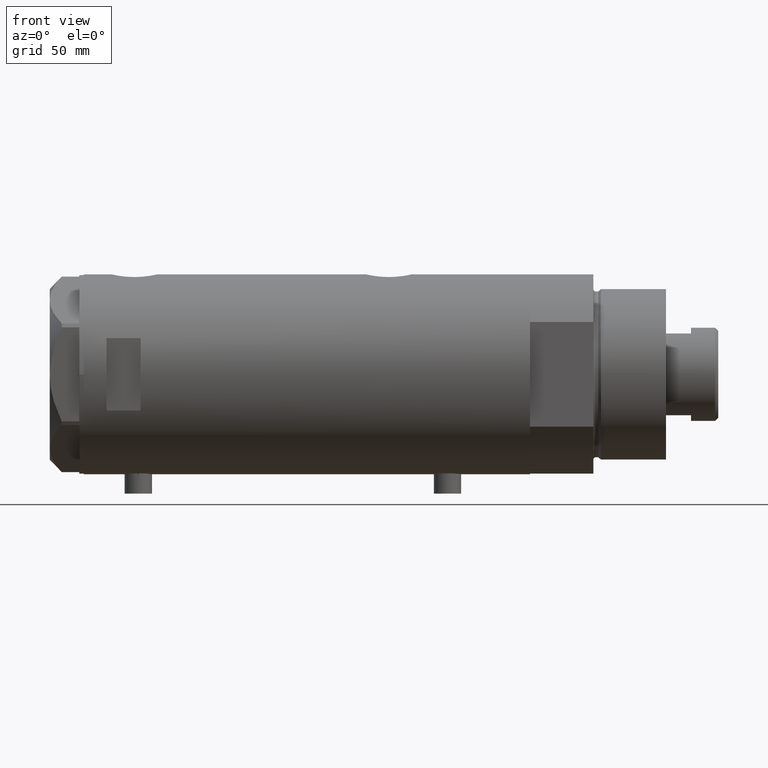
[diagram: clean part render]
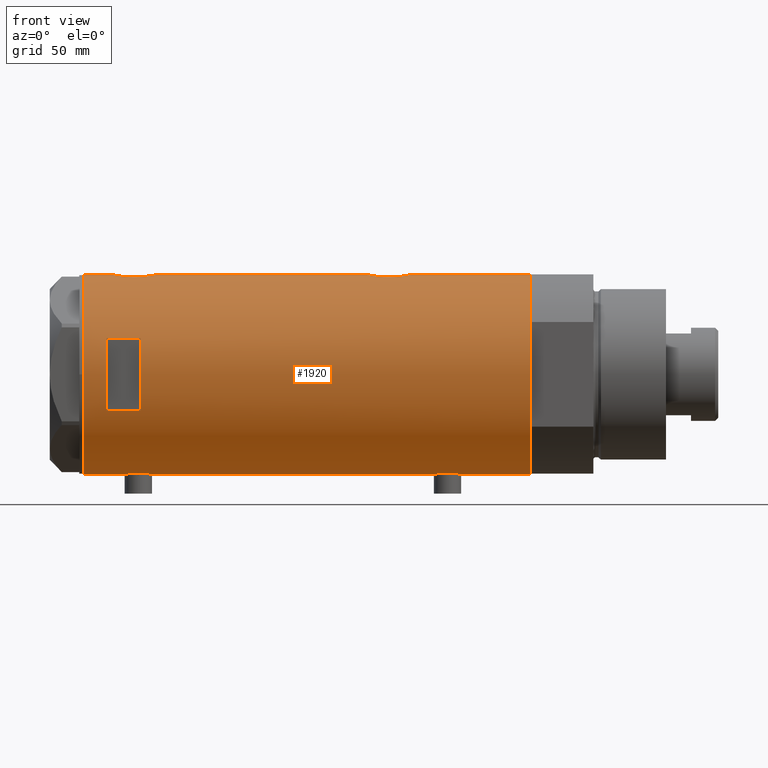
[diagram: same view with one face highlighted and labeled with its STEP entity id]
A machine part, front view. The second image highlights one B-rep face of the part: STEP entity #1920.
In plain terms, the highlighted cylindrical surface (partial cylindrical patch) has radius 44 mm, axis along (-1, -0, 0).
Its self-contained STEP definition (entity closure, byte-faithful):
#26 = CARTESIAN_POINT ( 'NONE',  ( -43.66469451360047316, -5.426465874727620431, -58.77225408135789309 ) ) ;
#27 = CARTESIAN_POINT ( 'NONE',  ( 43.85817087158035577, -3.542878095418167117, -45.45703661115526018 ) ) ;
#54 = CARTESIAN_POINT ( 'NONE',  ( -43.74813644611201369, -4.709999724143506761, -57.77155956056775210 ) ) ;
#56 = CARTESIAN_POINT ( 'NONE',  ( 43.39114022679083860, -7.298186114522533963, -29.25582720507938816 ) ) ;
#59 = DIRECTION ( 'NONE',  ( 0.000000000000000000, 0.000000000000000000, 1.000000000000000000 ) ) ;
#82 = DIRECTION ( 'NONE',  ( 1.000000000000000000, 0.000000000000000000, 0.000000000000000000 ) ) ;
#84 = CARTESIAN_POINT ( 'NONE',  ( -15.96871942267132027, -40.99999999999999289, -98.20000000000000284 ) ) ;
#85 = CARTESIAN_POINT ( 'NONE',  ( -44.00000000000000000, 5.388445916248353619E-15, -98.20000000000000284 ) ) ;
#98 = CARTESIAN_POINT ( 'NONE',  ( -43.59959777593761032, -5.922725608094079774, -59.89350688782584342 ) ) ;
#148 = CARTESIAN_POINT ( 'NONE',  ( 43.98543813568861793, -1.304985013906736713, 85.83653066273880938 ) ) ;
#150 = FACE_OUTER_BOUND ( 'NONE', #3249, .T. ) ;
#152 = VERTEX_POINT ( 'NONE', #530 ) ;
#171 = CARTESIAN_POINT ( 'NONE',  ( -43.55380622335315621, -6.250277076879243943, 74.60889833390194781 ) ) ;
#191 = CARTESIAN_POINT ( 'NONE',  ( -43.64013512596971367, -5.618144550806293047, 76.96884254373171075 ) ) ;
#217 = CARTESIAN_POINT ( 'NONE',  ( -43.74870614644074607, -4.704745394280565485, 70.06553512659976946 ) ) ;
#224 = CARTESIAN_POINT ( 'NONE',  ( -43.74870614644073896, -4.704745394280569037, -66.03446487340026749 ) ) ;
#238 = CARTESIAN_POINT ( 'NONE',  ( 43.46477581456304051, -6.845969322274853219, 68.60355539876688624 ) ) ;
#257 = CARTESIAN_POINT ( 'NONE',  ( 42.99316244204496940, -9.359736474891654723, 79.43603020032176687 ) ) ;
#259 = B_SPLINE_CURVE_WITH_KNOTS ( 'NONE', 3,
 ( #3297, #1853, #148, #1204, #4045, #2607, #1922, #1573, #1228, #2633, #891, #2285, #1984, #623, #4436, #3057, #1959, #257, #1664, #2351, #1338, #3076, #2053, #1703, #4477, #3756, #3696, #4098, #3719, #909, #3377, #2028, #286, #2698, #238, #1643, #4459, #3096, #4494, #1686, #3423, #2759, #2739, #1360, #4137, #649, #993 ),
 .UNSPECIFIED., .F., .F.,
 ( 4, 2, 2, 2, 2, 2, 2, 2, 2, 2, 1, 2, 2, 2, 2, 2, 2, 2, 2, 2, 2, 2, 2, 4 ),
 ( 0.03136730421198213881, 0.03332724096696806915, 0.03528717772195399949, 0.03626714609944696466, 0.03724711447693992289, 0.03920705123192585323, 0.04018701960941880452, 0.04116698798691175581, 0.04312692474189768616, 0.04410689311939065826, 0.04508686149688362343, 0.04606682987437659554, 0.04704679825186956071, 0.04900673500685545636, 0.05096667176184135201, 0.05292660851682724765, 0.05390657689432017119, 0.05488654527181310167, 0.05586651364930603214, 0.05684648202679896262, 0.05880641878178481663, 0.05978638715927775404, 0.06076635553677069146, 0.06272629229175656629 ),
 .UNSPECIFIED. ) ;
#261 = CARTESIAN_POINT ( 'NONE',  ( -43.59994860325051036, -5.920144153815573240, 72.18593642430241175 ) ) ;
#268 = VERTEX_POINT ( 'NONE', #2063 ) ;
#286 = CARTESIAN_POINT ( 'NONE',  ( 43.35257225115238100, -7.523216248090028202, 69.30394696407655886 ) ) ;
#326 = CARTESIAN_POINT ( 'NONE',  ( 42.92195198079053853, -9.681069926205545073, -38.68932500906514349 ) ) ;
#341 = DIRECTION ( 'NONE',  ( -0.000000000000000000, -4.625929269271481378E-15, 1.000000000000000000 ) ) ;
#377 = CARTESIAN_POINT ( 'NONE',  ( 43.61181667275832297, -5.838254419127783201, -44.22544109417496117 ) ) ;
#398 = CARTESIAN_POINT ( 'NONE',  ( -43.55388615229803406, -6.249720082677246324, -62.31732514111985211 ) ) ;
#400 = CARTESIAN_POINT ( 'NONE',  ( 43.80655905412561424, -4.132395729537631901, -26.98794673806236943 ) ) ;
#426 = CARTESIAN_POINT ( 'NONE',  ( -43.94477385411918391, -2.211843467998025226, -56.05092770077139619 ) ) ;
#432 = DIRECTION ( 'NONE',  ( 0.000000000000000000, 0.000000000000000000, 1.000000000000000000 ) ) ;
#453 = DIRECTION ( 'NONE',  ( 1.000000000000000000, 0.000000000000000000, 0.000000000000000000 ) ) ;
#474 = LINE ( 'NONE', #2938, #995 ) ;
#493 = ORIENTED_EDGE ( 'NONE', *, *, #2225, .F. ) ;
#497 = LINE ( 'NONE', #3979, #3282 ) ;
#498 = VECTOR ( 'NONE', #1064, 1000.000000000000000 ) ;
#530 = CARTESIAN_POINT ( 'NONE',  ( 44.00000000000000000, 2.836945177865671897E-15, -46.10000000000000853 ) ) ;
#562 = CARTESIAN_POINT ( 'NONE',  ( -43.83572624786197025, -3.813948911733268776, 69.23163569779342197 ) ) ;
#563 = CARTESIAN_POINT ( 'NONE',  ( -15.96871942267132027, -40.99999999999999289, 88.20000000000000284 ) ) ;
#578 = CARTESIAN_POINT ( 'NONE',  ( 44.00000000000000000, 2.836945177865671897E-15, -46.10000000000000853 ) ) ;
#594 = B_SPLINE_CURVE_WITH_KNOTS ( 'NONE', 3,
 ( #3660, #4267, #2915, #2939, #1188, #3982, #1121, #3915, #1576, #4397, #562, #1252, #217, #4101, #4439, #958, #1272, #261, #1667, #3338, #2355, #2702, #171, #4379, #3738, #2656, #1231, #2637, #191, #894, #911, #2307, #3701, #1623, #1918, #2536, #4305, #4328, #1162, #3692, #2653, #4432, #973 ),
 .UNSPECIFIED., .F., .F.,
 ( 4, 2, 2, 1, 2, 2, 2, 2, 2, 2, 2, 2, 2, 2, 2, 2, 2, 2, 2, 2, 2, 4 ),
 ( 0.01956509074799517994, 0.02078761141254040559, 0.02139887174481301668, 0.02201013207708563124, 0.02262139240935824580, 0.02323265274163085689, 0.02445517340617610336, 0.02567769407072134982, 0.02690021473526659629, 0.02751147506753922126, 0.02812273539981184622, 0.02934525606435713085, 0.03056777672890241548, 0.03117903706117506127, 0.03179029739344770011, 0.03301281805799302638, 0.03423533872253835264, 0.03545785938708367196, 0.03668038005162899129, 0.03729164038390166136, 0.03790290071617432449, 0.03912542138071965075 ),
 .UNSPECIFIED. ) ;
#598 = CARTESIAN_POINT ( 'NONE',  ( 44.00000000000000000, 0.000000000000000000, -98.20000000000000284 ) ) ;
#623 = CARTESIAN_POINT ( 'NONE',  ( 43.27890888111421930, -7.936045294464972422, 81.99318436657195264 ) ) ;
#625 = CIRCLE ( 'NONE', #4000, 44.00000000000000000 ) ;
#649 = CARTESIAN_POINT ( 'NONE',  ( 43.99999999999998579, -0.6628808997490068800, 65.89999999999999147 ) ) ;
#652 = CARTESIAN_POINT ( 'NONE',  ( -43.97059312650997498, -1.620278982928825551, -67.93978691385872537 ) ) ;
#690 = B_SPLINE_CURVE_WITH_KNOTS ( 'NONE', 3,
 ( #2154, #4240, #2130, #3628, #3538, #400, #1784, #4530, #3809, #3170, #2076, #56, #1889, #3858, #1387, #1365, #1408, #3294, #1062, #2439, #1091, #2423, #724, #4260, #2765, #3516, #326, #2794, #1809, #3465, #3124, #3195, #2843, #3831, #2815, #701, #2464, #377, #1470, #2871, #27, #1437, #1289, #4431, #3030, #2283, #578 ),
 .UNSPECIFIED., .F., .F.,
 ( 4, 2, 2, 2, 2, 2, 2, 2, 2, 2, 1, 2, 2, 2, 2, 2, 2, 2, 2, 2, 2, 2, 2, 4 ),
 ( 0.03136730421198216656, 0.03332724096696806915, 0.03528717772195397173, 0.03626714609944691609, 0.03724711447693986738, 0.03920705123192576302, 0.04018701960941871432, 0.04116698798691166561, 0.04312692474189756126, 0.04410689311939051255, 0.04508686149688346384, 0.04606682987437641513, 0.04704679825186936643, 0.04900673500685526207, 0.05096667176184117160, 0.05292660851682706724, 0.05390657689432003241, 0.05488654527181299758, 0.05586651364930595581, 0.05684648202679891404, 0.05880641878178481663, 0.05978638715927777486, 0.06076635553677073309, 0.06272629229175663568 ),
 .UNSPECIFIED. ) ;
#701 = CARTESIAN_POINT ( 'NONE',  ( 43.50208939911752992, -6.605519787823889821, -43.61487246254434069 ) ) ;
#724 = CARTESIAN_POINT ( 'NONE',  ( 42.85249883256044257, -9.983208936152879076, -35.43427783458178482 ) ) ;
#748 = CARTESIAN_POINT ( 'NONE',  ( -43.60904414879379232, -5.852991024272610865, -59.69843683347092878 ) ) ;
#806 = CARTESIAN_POINT ( 'NONE',  ( 0.000000000000000000, 0.000000000000000000, 98.20000000000000284 ) ) ;
#811 = VERTEX_POINT ( 'NONE', #3636 ) ;
#828 = DIRECTION ( 'NONE',  ( 0.000000000000000000, 0.000000000000000000, 1.000000000000000000 ) ) ;
#862 = VECTOR ( 'NONE', #4335, 1000.000000000000000 ) ;
#891 = CARTESIAN_POINT ( 'NONE',  ( 43.50370990764397305, -6.606474645717129945, 83.43520935284888651 ) ) ;
#894 = CARTESIAN_POINT ( 'NONE',  ( -43.66469451360045895, -5.426465874727613325, 77.32774591864212255 ) ) ;
#898 = CARTESIAN_POINT ( 'NONE',  ( 44.00000000000000000, 0.000000000000000000, -98.20000000000000284 ) ) ;
#909 = CARTESIAN_POINT ( 'NONE',  ( 43.13689707656755701, -8.680169016269172033, 70.89163097888800280 ) ) ;
#911 = CARTESIAN_POINT ( 'NONE',  ( -43.71863308610073773, -4.973248429199020215, 78.00737790121172566 ) ) ;
#913 = ORIENTED_EDGE ( 'NONE', *, *, #1742, .F. ) ;
#917 = CARTESIAN_POINT ( 'NONE',  ( -43.99999999999999289, -0.4080709675389172508, -68.15000000000001990 ) ) ;
#921 = VECTOR ( 'NONE', #4052, 1000.000000000000000 ) ;
#925 = AXIS2_PLACEMENT_3D ( 'NONE', #2958, #1140, #82 ) ;
#958 = CARTESIAN_POINT ( 'NONE',  ( -43.64064219598290606, -5.614224114468902904, 71.42314510380529669 ) ) ;
#972 = CARTESIAN_POINT ( 'NONE',  ( 0.000000000000000000, 0.000000000000000000, 73.20000000000018758 ) ) ;
#973 = CARTESIAN_POINT ( 'NONE',  ( -44.00000000000000000, 4.742435893011557518E-16, 80.45000000000001705 ) ) ;
#993 = CARTESIAN_POINT ( 'NONE',  ( 44.00000000000000000, -2.552687571866728611E-15, 65.90000000000001990 ) ) ;
#995 = VECTOR ( 'NONE', #4334, 1000.000000000000000 ) ;
#1018 = CARTESIAN_POINT ( 'NONE',  ( -43.55964145621771877, -6.209995197331135586, -61.08476386616428755 ) ) ;
#1019 = CARTESIAN_POINT ( 'NONE',  ( -43.66524845950888789, -5.422010366683141847, -65.03538043352979514 ) ) ;
#1060 = ORIENTED_EDGE ( 'NONE', *, *, #2173, .F. ) ;
#1062 = CARTESIAN_POINT ( 'NONE',  ( 42.96858625215908489, -9.471543237354845601, -32.87555220689220903 ) ) ;
#1064 = DIRECTION ( 'NONE',  ( 0.000000000000000000, 0.000000000000000000, 1.000000000000000000 ) ) ;
#1091 = CARTESIAN_POINT ( 'NONE',  ( 42.89002978762405149, -9.821289861518543773, -34.13508362278915342 ) ) ;
#1102 = EDGE_CURVE ( 'NONE', #2727, #1407, #2421, .T. ) ;
#1121 = CARTESIAN_POINT ( 'NONE',  ( -43.93596008603760339, -2.395372424984027582, 68.41650819469388978 ) ) ;
#1129 = VERTEX_POINT ( 'NONE', #898 ) ;
#1133 = EDGE_CURVE ( 'NONE', #3314, #3415, #2416, .T. ) ;
#1137 = CARTESIAN_POINT ( 'NONE',  ( -43.64013512596970656, -5.618144550806301041, -59.13115745626835462 ) ) ;
#1140 = DIRECTION ( 'NONE',  ( 0.000000000000000000, 0.000000000000000000, 1.000000000000000000 ) ) ;
#1162 = CARTESIAN_POINT ( 'NONE',  ( -43.97029046111977379, -1.628482392291957126, 80.23758619792059221 ) ) ;
#1188 = CARTESIAN_POINT ( 'NONE',  ( -43.97059312650996787, -1.620278982928820888, 68.16021308614129737 ) ) ;
#1204 = CARTESIAN_POINT ( 'NONE',  ( 43.92776409818818451, -2.602555515054472135, 85.57803349287081573 ) ) ;
#1228 = CARTESIAN_POINT ( 'NONE',  ( 43.68175117880464597, -5.289576318274436417, 84.39277543291558459 ) ) ;
#1231 = CARTESIAN_POINT ( 'NONE',  ( -43.59959777593760322, -5.922725608094071781, 76.20649311217414379 ) ) ;
#1244 = EDGE_CURVE ( 'NONE', #1704, #268, #3627, .T. ) ;
#1252 = CARTESIAN_POINT ( 'NONE',  ( -43.80686114384900520, -4.128296917151112133, 69.48984144871690205 ) ) ;
#1255 = CARTESIAN_POINT ( 'NONE',  ( -43.87623998657198143, -3.302247739865023846, -67.21034343519744425 ) ) ;
#1272 = CARTESIAN_POINT ( 'NONE',  ( -43.60943079847655213, -5.850114217193378430, 71.99078124073398044 ) ) ;
#1274 = LINE ( 'NONE', #4142, #2403 ) ;
#1289 = CARTESIAN_POINT ( 'NONE',  ( 43.92391465552167773, -2.605621203777293893, -45.76018015101779923 ) ) ;
#1338 = CARTESIAN_POINT ( 'NONE',  ( 42.89003040145177437, -9.821289533110931558, 77.86491628329994796 ) ) ;
#1344 = CARTESIAN_POINT ( 'NONE',  ( -44.00000000000000000, 5.388445781992449847E-15, -68.15000000000001990 ) ) ;
#1360 = CARTESIAN_POINT ( 'NONE',  ( 43.94187300917955241, -2.283844398366610129, 66.15873953182952505 ) ) ;
#1364 = CARTESIAN_POINT ( 'NONE',  ( -43.58358352828438598, -6.039443007521659190, -63.52163098385739204 ) ) ;
#1365 = CARTESIAN_POINT ( 'NONE',  ( 43.13833976206234411, -8.672905216733560962, -31.07967078979186937 ) ) ;
#1387 = CARTESIAN_POINT ( 'NONE',  ( 43.24269204559828239, -8.130405600641552155, -30.26885497193005392 ) ) ;
#1407 = VERTEX_POINT ( 'NONE', #4321 ) ;
#1408 = CARTESIAN_POINT ( 'NONE',  ( 43.07447880731469780, -8.980869115410040848, -31.65290029795897553 ) ) ;
#1437 = CARTESIAN_POINT ( 'NONE',  ( 43.88203303552249679, -3.235230624304758162, -45.56792613063984732 ) ) ;
#1465 = CARTESIAN_POINT ( 'NONE',  ( -43.95404166778756405, -2.020054257598463021, -55.98191054514349929 ) ) ;
#1470 = CARTESIAN_POINT ( 'NONE',  ( 43.71626298452613923, -5.019105827807318398, -44.77413437979601696 ) ) ;
#1471 = LINE ( 'NONE', #2873, #498 ) ;
#1515 = VECTOR ( 'NONE', #3754, 1000.000000000000000 ) ;
#1544 = CARTESIAN_POINT ( 'NONE',  ( 44.00000000000000000, -2.552687571866728611E-15, 65.90000000000001990 ) ) ;
#1573 = CARTESIAN_POINT ( 'NONE',  ( 43.71528002050701645, -5.005885132985640418, 84.56306306714488130 ) ) ;
#1576 = CARTESIAN_POINT ( 'NONE',  ( -43.88927795770375440, -3.124736516396337649, 68.78332595076192035 ) ) ;
#1609 = CARTESIAN_POINT ( 'NONE',  ( -43.88927795770375440, -3.124736516396334096, -67.31667404923810238 ) ) ;
#1623 = CARTESIAN_POINT ( 'NONE',  ( -43.83513771791772484, -3.820747781112549202, 79.16321018296372358 ) ) ;
#1643 = CARTESIAN_POINT ( 'NONE',  ( 43.50208939911752992, -6.605519787823896927, 68.38512753745570194 ) ) ;
#1664 = CARTESIAN_POINT ( 'NONE',  ( 42.96858625215907779, -9.471543237354833167, 79.12444779310783360 ) ) ;
#1667 = CARTESIAN_POINT ( 'NONE',  ( -43.58358352828439308, -6.039443007521657414, 72.57836901614263070 ) ) ;
#1686 = CARTESIAN_POINT ( 'NONE',  ( 43.77905627191560001, -4.445085099228551329, 66.91859165683969479 ) ) ;
#1703 = CARTESIAN_POINT ( 'NONE',  ( 42.84860178791322483, -9.999866241079296003, 76.23396382694163265 ) ) ;
#1704 = VERTEX_POINT ( 'NONE', #2336 ) ;
#1705 = CARTESIAN_POINT ( 'NONE',  ( -43.99432382855034973, -0.8140126287075748479, -68.11042166816913834 ) ) ;
#1742 = EDGE_CURVE ( 'NONE', #2856, #1407, #2832, .T. ) ;
#1747 = ORIENTED_EDGE ( 'NONE', *, *, #1133, .F. ) ;
#1784 = CARTESIAN_POINT ( 'NONE',  ( 43.77763691689010983, -4.427538730370036646, -27.12757287791930239 ) ) ;
#1787 = CARTESIAN_POINT ( 'NONE',  ( -44.00000000000000000, 6.472851849715296073E-16, -55.65000000000000568 ) ) ;
#1809 = CARTESIAN_POINT ( 'NONE',  ( 43.07321175413309788, -8.986876637256999700, -40.53428201988752733 ) ) ;
#1815 = ORIENTED_EDGE ( 'NONE', *, *, #3442, .F. ) ;
#1853 = CARTESIAN_POINT ( 'NONE',  ( 44.00000000000000000, -0.6537011444665535853, 85.90000000000001990 ) ) ;
#1856 = CYLINDRICAL_SURFACE ( 'NONE', #2981, 44.00000000000000000 ) ;
#1889 = CARTESIAN_POINT ( 'NONE',  ( 43.35323102813807594, -7.519449998269473134, -29.49957710715733583 ) ) ;
#1914 = EDGE_CURVE ( 'NONE', #4006, #1129, #3185, .T. ) ;
#1918 = CARTESIAN_POINT ( 'NONE',  ( -43.88932649443422918, -3.137583818903199262, 79.62099038059545819 ) ) ;
#1920 = ADVANCED_FACE ( 'NONE', ( #150, #2157 ), #1856, .T. ) ;
#1922 = CARTESIAN_POINT ( 'NONE',  ( 43.77763691689010273, -4.427538730370040199, 84.87242712208069406 ) ) ;
#1945 = CARTESIAN_POINT ( 'NONE',  ( -43.95442538259509746, -2.011679190499027658, -67.82093546509783266 ) ) ;
#1959 = CARTESIAN_POINT ( 'NONE',  ( 43.07447880731470491, -8.980869115410039072, 80.34709970204103513 ) ) ;
#1984 = CARTESIAN_POINT ( 'NONE',  ( 43.35323102813806173, -7.519449998269472246, 82.50042289284266417 ) ) ;
#1989 = EDGE_CURVE ( 'NONE', #3797, #2856, #474, .T. ) ;
#2028 = CARTESIAN_POINT ( 'NONE',  ( 43.27861175590267351, -7.937636171351968528, 69.80897132009005190 ) ) ;
#2053 = CARTESIAN_POINT ( 'NONE',  ( 42.85249883256044967, -9.983208936152871971, 76.56572216541823650 ) ) ;
#2057 = CARTESIAN_POINT ( 'NONE',  ( -43.59994860325051036, -5.920144153815575017, -63.91406357569761099 ) ) ;
#2063 = CARTESIAN_POINT ( 'NONE',  ( 15.96871942267132027, -40.99999999999999289, 73.19999999999998863 ) ) ;
#2073 = ORIENTED_EDGE ( 'NONE', *, *, #3556, .F. ) ;
#2075 = CARTESIAN_POINT ( 'NONE',  ( -43.57664920749032689, -6.089110472216507475, -63.32363086869416691 ) ) ;
#2076 = CARTESIAN_POINT ( 'NONE',  ( 43.50370990764397305, -6.606474645717125505, -28.56479064715112415 ) ) ;
#2130 = CARTESIAN_POINT ( 'NONE',  ( 43.98543813568862504, -1.304985013906736047, -26.16346933726120128 ) ) ;
#2153 = CARTESIAN_POINT ( 'NONE',  ( -44.00000000000000000, 6.472851849715296073E-16, -55.65000000000000568 ) ) ;
#2154 = CARTESIAN_POINT ( 'NONE',  ( 44.00000000000000000, -3.917142467416489149E-21, -26.10000000000000497 ) ) ;
#2157 = FACE_BOUND ( 'NONE', #2734, .T. ) ;
#2173 = EDGE_CURVE ( 'NONE', #4232, #1704, #3227, .T. ) ;
#2203 = EDGE_CURVE ( 'NONE', #3224, #4232, #625, .T. ) ;
#2205 = CARTESIAN_POINT ( 'NONE',  ( -43.97729452866929023, -1.427712738744857601, -55.81177092556577435 ) ) ;
#2225 = EDGE_CURVE ( 'NONE', #3231, #3797, #594, .T. ) ;
#2240 = AXIS2_PLACEMENT_3D ( 'NONE', #972, #341, #4274 ) ;
#2258 = EDGE_CURVE ( 'NONE', #1129, #152, #3420, .T. ) ;
#2283 = CARTESIAN_POINT ( 'NONE',  ( 44.00000000000000000, -0.6628808997490056587, -46.10000000000000853 ) ) ;
#2285 = CARTESIAN_POINT ( 'NONE',  ( 43.39114022679083860, -7.298186114522533074, 82.74417279492062960 ) ) ;
#2292 = CARTESIAN_POINT ( 'NONE',  ( -44.00000000000000000, 5.388445781992449847E-15, -68.15000000000001990 ) ) ;
#2293 = ORIENTED_EDGE ( 'NONE', *, *, #4378, .F. ) ;
#2307 = CARTESIAN_POINT ( 'NONE',  ( -43.74813644611199948, -4.709999724143497879, 78.32844043943227064 ) ) ;
#2336 = CARTESIAN_POINT ( 'NONE',  ( -15.96871942267132027, -40.99999999999999289, 73.19999999999998863 ) ) ;
#2351 = CARTESIAN_POINT ( 'NONE',  ( 42.92612181419236350, -9.662173761604313071, 78.49799789609716072 ) ) ;
#2355 = CARTESIAN_POINT ( 'NONE',  ( -43.55981666146650610, -6.208773019004409477, 73.37562000806383367 ) ) ;
#2396 = CARTESIAN_POINT ( 'NONE',  ( -43.60943079847653792, -5.850114217193380206, -64.10921875926608493 ) ) ;
#2403 = VECTOR ( 'NONE', #2679, 1000.000000000000000 ) ;
#2416 = B_SPLINE_CURVE_WITH_KNOTS ( 'NONE', 3,
 ( #2292, #917, #1705, #3683, #652, #1945, #3344, #2763, #1609, #1255, #3706, #3367, #224, #3462, #1019, #4077, #2396, #2057, #1364, #2075, #3566, #398, #2489, #1018, #2512, #3194, #98, #748, #1137, #26, #2813, #54, #3884, #3536, #3221, #2539, #426, #1465, #2870, #2205, #3242, #2460, #2153 ),
 .UNSPECIFIED., .F., .F.,
 ( 4, 2, 2, 1, 2, 2, 2, 2, 2, 2, 2, 2, 2, 2, 2, 2, 2, 2, 2, 2, 2, 4 ),
 ( 0.01956509074799518341, 0.02078761141254042641, 0.02139887174481304791, 0.02201013207708566941, 0.02262139240935828743, 0.02323265274163090893, 0.02445517340617617622, 0.02567769407072143656, 0.02690021473526670037, 0.02751147506753932881, 0.02812273539981196072, 0.02934525606435726269, 0.03056777672890254385, 0.03117903706117519658, 0.03179029739344783889, 0.03301281805799314434, 0.03423533872253844978, 0.03545785938708374829, 0.03668038005162904680, 0.03729164038390170299, 0.03790290071617435919, 0.03912542138071965769 ),
 .UNSPECIFIED. ) ;
#2421 = LINE ( 'NONE', #3018, #921 ) ;
#2423 = CARTESIAN_POINT ( 'NONE',  ( 42.86761451923558042, -9.918101748202664325, -34.78132476450376487 ) ) ;
#2439 = CARTESIAN_POINT ( 'NONE',  ( 42.92612181419236350, -9.662173761604314848, -33.50200210390286770 ) ) ;
#2447 = ORIENTED_EDGE ( 'NONE', *, *, #1244, .F. ) ;
#2460 = CARTESIAN_POINT ( 'NONE',  ( -44.00000000000000000, -0.4134142287044832997, -55.65000000000000568 ) ) ;
#2464 = CARTESIAN_POINT ( 'NONE',  ( 43.57553740812845433, -6.102230194686617537, -44.02899655988669281 ) ) ;
#2477 = CARTESIAN_POINT ( 'NONE',  ( -44.00000000000000000, 4.742435893011557518E-16, 80.45000000000001705 ) ) ;
#2489 = CARTESIAN_POINT ( 'NONE',  ( -43.55380622335316332, -6.250277076879251936, -61.49110166609812467 ) ) ;
#2512 = CARTESIAN_POINT ( 'NONE',  ( -43.57636709704395628, -6.091127289750679630, -60.48500674339015148 ) ) ;
#2515 = DIRECTION ( 'NONE',  ( 0.000000000000000000, 0.000000000000000000, 1.000000000000000000 ) ) ;
#2536 = CARTESIAN_POINT ( 'NONE',  ( -43.91398925748691084, -2.775454910411443876, 79.81470775681063401 ) ) ;
#2539 = CARTESIAN_POINT ( 'NONE',  ( -43.91398925748693216, -2.775454910411439879, -56.28529224318937452 ) ) ;
#2559 = ORIENTED_EDGE ( 'NONE', *, *, #1914, .T. ) ;
#2588 = CARTESIAN_POINT ( 'NONE',  ( 0.000000000000000000, 0.000000000000000000, 88.20000000000000284 ) ) ;
#2607 = CARTESIAN_POINT ( 'NONE',  ( 43.80655905412562134, -4.132395729537633677, 85.01205326193762346 ) ) ;
#2633 = CARTESIAN_POINT ( 'NONE',  ( 43.57790701154752355, -6.104591320335877036, 83.84741300894935989 ) ) ;
#2637 = CARTESIAN_POINT ( 'NONE',  ( -43.60904414879379942, -5.852991024272603759, 76.40156316652908686 ) ) ;
#2653 = CARTESIAN_POINT ( 'NONE',  ( -43.99417593155912698, -0.8219945290704717689, 80.40938102412962962 ) ) ;
#2656 = CARTESIAN_POINT ( 'NONE',  ( -43.58327167020068060, -6.041691433183235205, 75.81327550783366576 ) ) ;
#2672 = VERTEX_POINT ( 'NONE', #1544 ) ;
#2679 = DIRECTION ( 'NONE',  ( 0.000000000000000000, 0.000000000000000000, 1.000000000000000000 ) ) ;
#2690 = CARTESIAN_POINT ( 'NONE',  ( 44.00000000000000000, -3.917104602093038540E-21, 85.90000000000000568 ) ) ;
#2698 = CARTESIAN_POINT ( 'NONE',  ( 43.39001814939472013, -7.304817421876465211, 69.06296539328327810 ) ) ;
#2702 = CARTESIAN_POINT ( 'NONE',  ( -43.55388615229803406, -6.249720082677240107, 73.78267485888017063 ) ) ;
#2727 = VERTEX_POINT ( 'NONE', #2690 ) ;
#2734 = EDGE_LOOP ( 'NONE', ( #2447, #1060, #4223, #4403 ) ) ;
#2739 = CARTESIAN_POINT ( 'NONE',  ( 43.92391465552169194, -2.605621203777309436, 66.23981984898223629 ) ) ;
#2759 = CARTESIAN_POINT ( 'NONE',  ( 43.88203303552251100, -3.235230624304767932, 66.43207386936018111 ) ) ;
#2763 = CARTESIAN_POINT ( 'NONE',  ( -43.91347832647109328, -2.763895659397266780, -67.50938649377584966 ) ) ;
#2765 = CARTESIAN_POINT ( 'NONE',  ( 42.84850870634925002, -10.00026508230968680, -36.75583915121742251 ) ) ;
#2794 = CARTESIAN_POINT ( 'NONE',  ( 42.96573602780769363, -9.487415353952522779, -39.32734544583617264 ) ) ;
#2813 = CARTESIAN_POINT ( 'NONE',  ( -43.71863308610075904, -4.973248429199021992, -58.09262209878829708 ) ) ;
#2815 = CARTESIAN_POINT ( 'NONE',  ( 43.46477581456304051, -6.845969322274839008, -43.39644460123313507 ) ) ;
#2832 = CIRCLE ( 'NONE', #4371, 44.00000000000000000 ) ;
#2843 = CARTESIAN_POINT ( 'NONE',  ( 43.35257225115238100, -7.523216248090020208, -42.69605303592345535 ) ) ;
#2856 = VERTEX_POINT ( 'NONE', #3737 ) ;
#2870 = CARTESIAN_POINT ( 'NONE',  ( -43.97029046111978090, -1.628482392291950687, -55.86241380207945184 ) ) ;
#2871 = CARTESIAN_POINT ( 'NONE',  ( 43.77905627191557869, -4.445085099228542447, -45.08140834316034073 ) ) ;
#2873 = CARTESIAN_POINT ( 'NONE',  ( -44.00000000000000000, 5.388445916248353619E-15, -98.20000000000000284 ) ) ;
#2915 = CARTESIAN_POINT ( 'NONE',  ( -43.99432382855034973, -0.8140126287075730716, 67.98957833183088439 ) ) ;
#2938 = CARTESIAN_POINT ( 'NONE',  ( -44.00000000000000000, 5.388445916248353619E-15, -98.20000000000000284 ) ) ;
#2939 = CARTESIAN_POINT ( 'NONE',  ( -43.97755541524606571, -1.419649999726221967, 68.10988856076365039 ) ) ;
#2958 = CARTESIAN_POINT ( 'NONE',  ( 0.000000000000000000, 0.000000000000000000, -98.20000000000000284 ) ) ;
#2981 = AXIS2_PLACEMENT_3D ( 'NONE', #4356, #432, #3542 ) ;
#3018 = CARTESIAN_POINT ( 'NONE',  ( 44.00000000000000000, 0.000000000000000000, -98.20000000000000284 ) ) ;
#3030 = CARTESIAN_POINT ( 'NONE',  ( 43.98503203903423042, -1.316644100880400625, -46.03472955295632119 ) ) ;
#3057 = CARTESIAN_POINT ( 'NONE',  ( 43.13833976206234411, -8.672905216733555633, 80.92032921020813774 ) ) ;
#3076 = CARTESIAN_POINT ( 'NONE',  ( 42.86761451923558042, -9.918101748202658996, 77.21867523549629198 ) ) ;
#3096 = CARTESIAN_POINT ( 'NONE',  ( 43.61181667275830165, -5.838254419127787642, 67.77455890582506015 ) ) ;
#3124 = CARTESIAN_POINT ( 'NONE',  ( 43.24192112218942441, -8.134529092006106410, -41.92552229864112689 ) ) ;
#3156 = ORIENTED_EDGE ( 'NONE', *, *, #2258, .T. ) ;
#3170 = CARTESIAN_POINT ( 'NONE',  ( 43.57790701154753776, -6.104591320335877036, -28.15258699105065432 ) ) ;
#3185 = CIRCLE ( 'NONE', #925, 44.00000000000000000 ) ;
#3194 = CARTESIAN_POINT ( 'NONE',  ( -43.58327167020068060, -6.041691433183244975, -60.28672449216637119 ) ) ;
#3195 = CARTESIAN_POINT ( 'NONE',  ( 43.27861175590268772, -7.937636171351963199, -42.19102867990999783 ) ) ;
#3201 = VECTOR ( 'NONE', #59, 1000.000000000000000 ) ;
#3221 = CARTESIAN_POINT ( 'NONE',  ( -43.88932649443424339, -3.137583818903205479, -56.47900961940456455 ) ) ;
#3224 = VERTEX_POINT ( 'NONE', #3880 ) ;
#3227 = LINE ( 'NONE', #84, #862 ) ;
#3231 = VERTEX_POINT ( 'NONE', #4367 ) ;
#3242 = CARTESIAN_POINT ( 'NONE',  ( -43.99417593155910566, -0.8219945290704724350, -55.69061897587039311 ) ) ;
#3249 = EDGE_LOOP ( 'NONE', ( #4318, #2559, #3156, #2293, #4421, #2073, #4218, #913, #3256, #493, #1815, #1747 ) ) ;
#3256 = ORIENTED_EDGE ( 'NONE', *, *, #1989, .F. ) ;
#3276 = DIRECTION ( 'NONE',  ( -0.000000000000000000, 0.000000000000000000, -1.000000000000000000 ) ) ;
#3282 = VECTOR ( 'NONE', #828, 1000.000000000000000 ) ;
#3294 = CARTESIAN_POINT ( 'NONE',  ( 42.99316244204496229, -9.359736474891656499, -32.56396979967825445 ) ) ;
#3297 = CARTESIAN_POINT ( 'NONE',  ( 44.00000000000000000, -3.917104602093038540E-21, 85.90000000000000568 ) ) ;
#3314 = VERTEX_POINT ( 'NONE', #1344 ) ;
#3338 = CARTESIAN_POINT ( 'NONE',  ( -43.57664920749031978, -6.089110472216501257, 72.77636913130589846 ) ) ;
#3344 = CARTESIAN_POINT ( 'NONE',  ( -43.93596008603759628, -2.395372424984031579, -67.68349180530614717 ) ) ;
#3367 = CARTESIAN_POINT ( 'NONE',  ( -43.80686114384899810, -4.128296917151115686, -66.61015855128312069 ) ) ;
#3377 = CARTESIAN_POINT ( 'NONE',  ( 43.24192112218943151, -8.134529092006102857, 70.07447770135895837 ) ) ;
#3415 = VERTEX_POINT ( 'NONE', #1787 ) ;
#3420 = LINE ( 'NONE', #598, #1515 ) ;
#3423 = CARTESIAN_POINT ( 'NONE',  ( 43.85817087158037708, -3.542878095418179107, 66.54296338884478246 ) ) ;
#3442 = EDGE_CURVE ( 'NONE', #3415, #3231, #3489, .T. ) ;
#3462 = CARTESIAN_POINT ( 'NONE',  ( -43.71916086763248899, -4.968610719017474864, -65.71335998854627292 ) ) ;
#3464 = EDGE_CURVE ( 'NONE', #4006, #3314, #1471, .T. ) ;
#3465 = CARTESIAN_POINT ( 'NONE',  ( 43.13689707656754990, -8.680169016269179139, -41.10836902111201141 ) ) ;
#3489 = LINE ( 'NONE', #4212, #3201 ) ;
#3490 = EDGE_CURVE ( 'NONE', #268, #3224, #497, .T. ) ;
#3516 = CARTESIAN_POINT ( 'NONE',  ( 42.86369059155246930, -9.935849517229275563, -37.40637410018199205 ) ) ;
#3536 = CARTESIAN_POINT ( 'NONE',  ( -43.83513771791772484, -3.820747781112554531, -56.93678981703624942 ) ) ;
#3538 = CARTESIAN_POINT ( 'NONE',  ( 43.88549648731375896, -3.229309612650773431, -26.61335697513613852 ) ) ;
#3542 = DIRECTION ( 'NONE',  ( 1.000000000000000000, 0.000000000000000000, 0.000000000000000000 ) ) ;
#3556 = EDGE_CURVE ( 'NONE', #2727, #2672, #259, .T. ) ;
#3566 = CARTESIAN_POINT ( 'NONE',  ( -43.55981666146652742, -6.208773019004414806, -62.72437999193618197 ) ) ;
#3599 = DIRECTION ( 'NONE',  ( 1.000000000000000000, 0.000000000000000000, 0.000000000000000000 ) ) ;
#3627 = CIRCLE ( 'NONE', #2240, 44.00000000000000000 ) ;
#3628 = CARTESIAN_POINT ( 'NONE',  ( 43.92776409818817740, -2.602555515054472579, -26.42196650712919137 ) ) ;
#3636 = CARTESIAN_POINT ( 'NONE',  ( 44.00000000000000000, -3.917142467416489149E-21, -26.10000000000000497 ) ) ;
#3660 = CARTESIAN_POINT ( 'NONE',  ( -44.00000000000000000, 5.388445781982983516E-15, 67.95000000000001705 ) ) ;
#3683 = CARTESIAN_POINT ( 'NONE',  ( -43.97755541524607992, -1.419649999726222633, -67.99011143923635814 ) ) ;
#3692 = CARTESIAN_POINT ( 'NONE',  ( -43.97729452866927602, -1.427712738744854715, 80.28822907443425549 ) ) ;
#3696 = CARTESIAN_POINT ( 'NONE',  ( 42.92195198079053142, -9.681069926205539744, 73.31067499093487072 ) ) ;
#3701 = CARTESIAN_POINT ( 'NONE',  ( -43.80623767923739109, -4.134861581628527460, 78.90436367260696215 ) ) ;
#3706 = CARTESIAN_POINT ( 'NONE',  ( -43.83572624786197736, -3.813948911733276770, -66.86836430220661498 ) ) ;
#3719 = CARTESIAN_POINT ( 'NONE',  ( 43.07321175413309078, -8.986876637256992595, 71.46571798011245846 ) ) ;
#3737 = CARTESIAN_POINT ( 'NONE',  ( -44.00000000000000000, 5.388445916248353619E-15, 98.20000000000000284 ) ) ;
#3738 = CARTESIAN_POINT ( 'NONE',  ( -43.57636709704394917, -6.091127289750676077, 75.61499325660989257 ) ) ;
#3754 = DIRECTION ( 'NONE',  ( 0.000000000000000000, 0.000000000000000000, 1.000000000000000000 ) ) ;
#3756 = CARTESIAN_POINT ( 'NONE',  ( 42.86369059155248351, -9.935849517229275563, 74.59362589981802216 ) ) ;
#3797 = VERTEX_POINT ( 'NONE', #2477 ) ;
#3809 = CARTESIAN_POINT ( 'NONE',  ( 43.68175117880464597, -5.289576318274432865, -27.60722456708441896 ) ) ;
#3831 = CARTESIAN_POINT ( 'NONE',  ( 43.39001814939471302, -7.304817421876454553, -42.93703460671677163 ) ) ;
#3858 = CARTESIAN_POINT ( 'NONE',  ( 43.27890888111421219, -7.936045294464970645, -30.00681563342805092 ) ) ;
#3880 = CARTESIAN_POINT ( 'NONE',  ( 15.96871942267132027, -40.99999999999999289, 88.20000000000000284 ) ) ;
#3884 = CARTESIAN_POINT ( 'NONE',  ( -43.80623767923739820, -4.134861581628535454, -57.19563632739305348 ) ) ;
#3915 = CARTESIAN_POINT ( 'NONE',  ( -43.91347832647110039, -2.763895659397271665, 68.59061350622417308 ) ) ;
#3979 = CARTESIAN_POINT ( 'NONE',  ( 15.96871942267132027, -40.99999999999999289, -98.20000000000000284 ) ) ;
#3982 = CARTESIAN_POINT ( 'NONE',  ( -43.95442538259509746, -2.011679190499023662, 68.27906453490220429 ) ) ;
#4000 = AXIS2_PLACEMENT_3D ( 'NONE', #2588, #3276, #3599 ) ;
#4006 = VERTEX_POINT ( 'NONE', #85 ) ;
#4045 = CARTESIAN_POINT ( 'NONE',  ( 43.88549648731375896, -3.229309612650779204, 85.38664302486387214 ) ) ;
#4052 = DIRECTION ( 'NONE',  ( 0.000000000000000000, 0.000000000000000000, 1.000000000000000000 ) ) ;
#4077 = CARTESIAN_POINT ( 'NONE',  ( -43.64064219598292027, -5.614224114468902904, -64.67685489619476868 ) ) ;
#4098 = CARTESIAN_POINT ( 'NONE',  ( 42.96573602780768653, -9.487415353952515673, 72.67265455416382736 ) ) ;
#4101 = CARTESIAN_POINT ( 'NONE',  ( -43.71916086763248899, -4.968610719017467758, 70.38664001145374982 ) ) ;
#4137 = CARTESIAN_POINT ( 'NONE',  ( 43.98503203903423753, -1.316644100880406176, 65.96527044704370724 ) ) ;
#4142 = CARTESIAN_POINT ( 'NONE',  ( 44.00000000000000000, 0.000000000000000000, -98.20000000000000284 ) ) ;
#4212 = CARTESIAN_POINT ( 'NONE',  ( -44.00000000000000000, 5.388445916248353619E-15, -98.20000000000000284 ) ) ;
#4218 = ORIENTED_EDGE ( 'NONE', *, *, #1102, .T. ) ;
#4223 = ORIENTED_EDGE ( 'NONE', *, *, #2203, .F. ) ;
#4232 = VERTEX_POINT ( 'NONE', #563 ) ;
#4240 = CARTESIAN_POINT ( 'NONE',  ( 44.00000000000000000, -0.6537011444665530302, -26.10000000000000142 ) ) ;
#4260 = CARTESIAN_POINT ( 'NONE',  ( 42.84860178791321772, -9.999866241079299556, -35.76603617305837446 ) ) ;
#4267 = CARTESIAN_POINT ( 'NONE',  ( -44.00000000000001421, -0.4080709675389184166, 67.95000000000001705 ) ) ;
#4274 = DIRECTION ( 'NONE',  ( 1.776356839400250465E-15, 1.000000000000000000, 4.731064025391292434E-15 ) ) ;
#4305 = CARTESIAN_POINT ( 'NONE',  ( -43.94477385411916970, -2.211843467998029666, 80.04907229922866918 ) ) ;
#4318 = ORIENTED_EDGE ( 'NONE', *, *, #3464, .F. ) ;
#4321 = CARTESIAN_POINT ( 'NONE',  ( 44.00000000000000000, 0.000000000000000000, 98.20000000000000284 ) ) ;
#4328 = CARTESIAN_POINT ( 'NONE',  ( -43.95404166778755695, -2.020054257598466574, 80.11808945485654476 ) ) ;
#4329 = EDGE_CURVE ( 'NONE', #811, #2672, #1274, .T. ) ;
#4334 = DIRECTION ( 'NONE',  ( 0.000000000000000000, 0.000000000000000000, 1.000000000000000000 ) ) ;
#4335 = DIRECTION ( 'NONE',  ( -0.000000000000000000, -0.000000000000000000, -1.000000000000000000 ) ) ;
#4356 = CARTESIAN_POINT ( 'NONE',  ( 0.000000000000000000, 0.000000000000000000, -98.20000000000000284 ) ) ;
#4367 = CARTESIAN_POINT ( 'NONE',  ( -44.00000000000000000, 5.388445781982983516E-15, 67.95000000000001705 ) ) ;
#4371 = AXIS2_PLACEMENT_3D ( 'NONE', #806, #2515, #453 ) ;
#4378 = EDGE_CURVE ( 'NONE', #811, #152, #690, .T. ) ;
#4379 = CARTESIAN_POINT ( 'NONE',  ( -43.55964145621772587, -6.209995197331129368, 75.01523613383574229 ) ) ;
#4397 = CARTESIAN_POINT ( 'NONE',  ( -43.87623998657198143, -3.302247739865014964, 68.88965656480259270 ) ) ;
#4403 = ORIENTED_EDGE ( 'NONE', *, *, #3490, .F. ) ;
#4421 = ORIENTED_EDGE ( 'NONE', *, *, #4329, .T. ) ;
#4431 = CARTESIAN_POINT ( 'NONE',  ( 43.94187300917954531, -2.283844398366604356, -45.84126046817048916 ) ) ;
#4432 = CARTESIAN_POINT ( 'NONE',  ( -44.00000000000000711, -0.4134142287044808017, 80.45000000000004547 ) ) ;
#4436 = CARTESIAN_POINT ( 'NONE',  ( 43.24269204559828950, -8.130405600641543273, 81.73114502806993187 ) ) ;
#4439 = CARTESIAN_POINT ( 'NONE',  ( -43.66524845950890210, -5.422010366683132965, 71.06461956647024181 ) ) ;
#4459 = CARTESIAN_POINT ( 'NONE',  ( 43.57553740812844723, -6.102230194686623754, 67.97100344011332140 ) ) ;
#4477 = CARTESIAN_POINT ( 'NONE',  ( 42.84850870634926423, -10.00026508230968325, 75.24416084878259880 ) ) ;
#4494 = CARTESIAN_POINT ( 'NONE',  ( 43.71626298452613923, -5.019105827807321951, 67.22586562020403278 ) ) ;
#4530 = CARTESIAN_POINT ( 'NONE',  ( 43.71528002050703776, -5.005885132985639530, -27.43693693285514001 ) ) ;